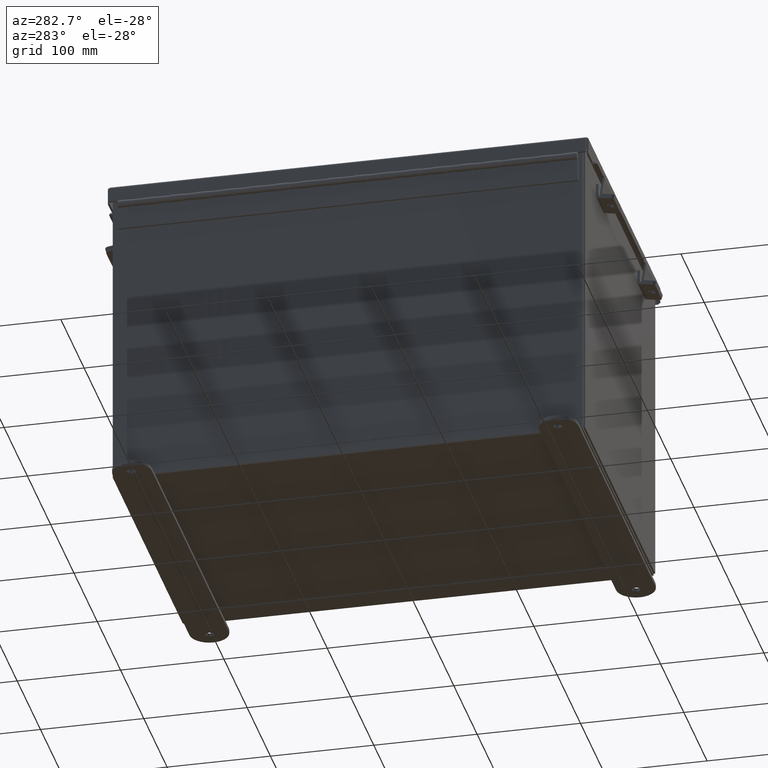
[diagram: clean part render]
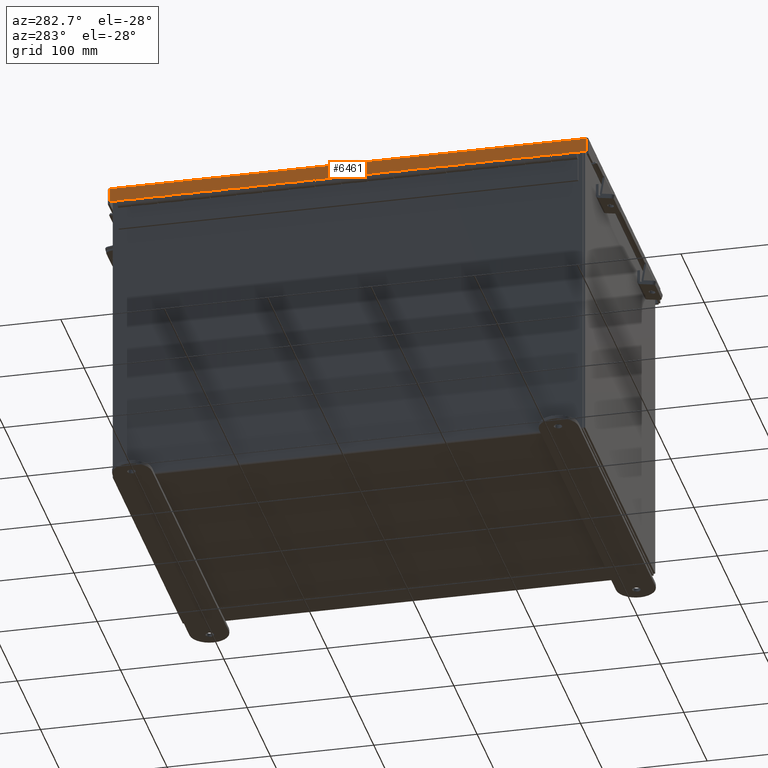
[diagram: same view with one face highlighted and labeled with its STEP entity id]
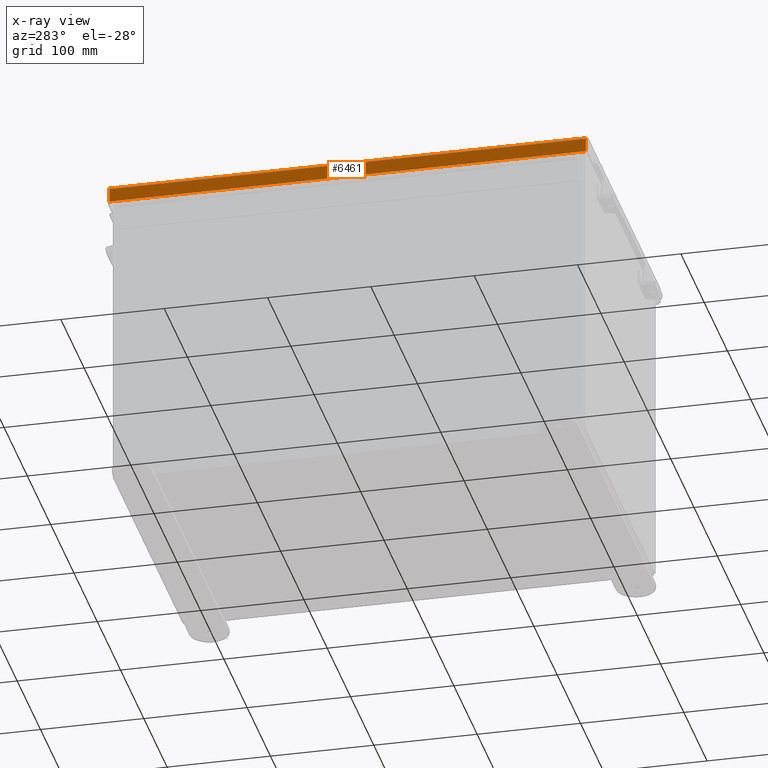
[diagram: x-ray of the same camera — body ghosted, the highlighted face saturated]
A machine part, auxiliary view. The second image highlights one B-rep face of the part: STEP entity #6461.
The next image is the same camera in x-ray: the body ghosted, the highlighted face saturated — about 0% of this face is hidden behind the body in this view.
In plain terms, the highlighted planar face has unit normal (1, -0, -0).
Its self-contained STEP definition (entity closure, byte-faithful):
#834 = EDGE_CURVE ( 'NONE', #17057, #14018, #14956, .T. ) ;
#863 = EDGE_LOOP ( 'NONE', ( #2533, #14003, #3083, #11135 ) ) ;
#1100 = VECTOR ( 'NONE', #12593, 39.37007874015748100 ) ;
#1128 = VERTEX_POINT ( 'NONE', #2860 ) ;
#2533 = ORIENTED_EDGE ( 'NONE', *, *, #13532, .F. ) ;
#2860 = CARTESIAN_POINT ( 'NONE',  ( 6.156250000000000000, -9.074478932188144500, 0.01300000000000010700 ) ) ;
#3083 = ORIENTED_EDGE ( 'NONE', *, *, #834, .T. ) ;
#4206 = CARTESIAN_POINT ( 'NONE',  ( 6.156250000000000000, -9.070589041463374400E-018, -2.404026234424551500E-014 ) ) ;
#4515 = CARTESIAN_POINT ( 'NONE',  ( 6.156250000000002700, 9.074478932188125000, 0.5503000000000010100 ) ) ;
#5819 = VECTOR ( 'NONE', #8334, 39.37007874015748100 ) ;
#6453 = VECTOR ( 'NONE', #13291, 39.37007874015748100 ) ;
#6461 = ADVANCED_FACE ( 'NONE', ( #14780 ), #11666, .F. ) ;
#8200 = CARTESIAN_POINT ( 'NONE',  ( 6.156250000000002700, -1.387266559282633700E-017, 0.5502999999999987900 ) ) ;
#8334 = DIRECTION ( 'NONE',  ( 3.971430846686188400E-015, 3.328006943901143600E-030, 1.000000000000000000 ) ) ;
#8351 = EDGE_CURVE ( 'NONE', #18037, #17057, #11679, .T. ) ;
#8451 = EDGE_CURVE ( 'NONE', #1128, #14018, #9814, .T. ) ;
#8730 = DIRECTION ( 'NONE',  ( -1.000000000000000000, 2.838897997321008200E-029, 3.971430846686188400E-015 ) ) ;
#9814 = LINE ( 'NONE', #12787, #5819 ) ;
#11135 = ORIENTED_EDGE ( 'NONE', *, *, #8451, .F. ) ;
#11666 = PLANE ( 'NONE',  #16714 ) ;
#11679 = LINE ( 'NONE', #15507, #1100 ) ;
#12593 = DIRECTION ( 'NONE',  ( 3.971430846686188400E-015, 3.328006943901143600E-030, 1.000000000000000000 ) ) ;
#12640 = CARTESIAN_POINT ( 'NONE',  ( 6.156250000000000000, 9.074478932188125000, 0.01300000000000229300 ) ) ;
#12787 = CARTESIAN_POINT ( 'NONE',  ( 6.156250000000000000, -9.074478932188146300, 0.0000000000000000000 ) ) ;
#13291 = DIRECTION ( 'NONE',  ( 2.815142146308770200E-029, -1.000000000000000000, -5.967176504932513700E-017 ) ) ;
#13532 = EDGE_CURVE ( 'NONE', #18037, #1128, #17891, .T. ) ;
#14003 = ORIENTED_EDGE ( 'NONE', *, *, #8351, .T. ) ;
#14018 = VERTEX_POINT ( 'NONE', #14252 ) ;
#14252 = CARTESIAN_POINT ( 'NONE',  ( 6.156250000000002700, -9.074478932188146300, 0.5503000000000010100 ) ) ;
#14780 = FACE_OUTER_BOUND ( 'NONE', #863, .T. ) ;
#14956 = LINE ( 'NONE', #8200, #19398 ) ;
#15507 = CARTESIAN_POINT ( 'NONE',  ( 6.156250000000000000, 9.074478932188125000, -2.404026234424551500E-014 ) ) ;
#16714 = AXIS2_PLACEMENT_3D ( 'NONE', #4206, #8730, #19167 ) ;
#17057 = VERTEX_POINT ( 'NONE', #4515 ) ;
#17891 = LINE ( 'NONE', #19219, #6453 ) ;
#18037 = VERTEX_POINT ( 'NONE', #12640 ) ;
#18566 = DIRECTION ( 'NONE',  ( 2.838787860278874200E-029, -1.000000000000000000, -3.328006943901143600E-030 ) ) ;
#19167 = DIRECTION ( 'NONE',  ( 3.971430846686188400E-015, 3.328006943901143600E-030, 1.000000000000000000 ) ) ;
#19219 = CARTESIAN_POINT ( 'NONE',  ( 6.156250000000000000, -9.156250000000008900, 0.01300000000000010700 ) ) ;
#19398 = VECTOR ( 'NONE', #18566, 39.37007874015748100 ) ;